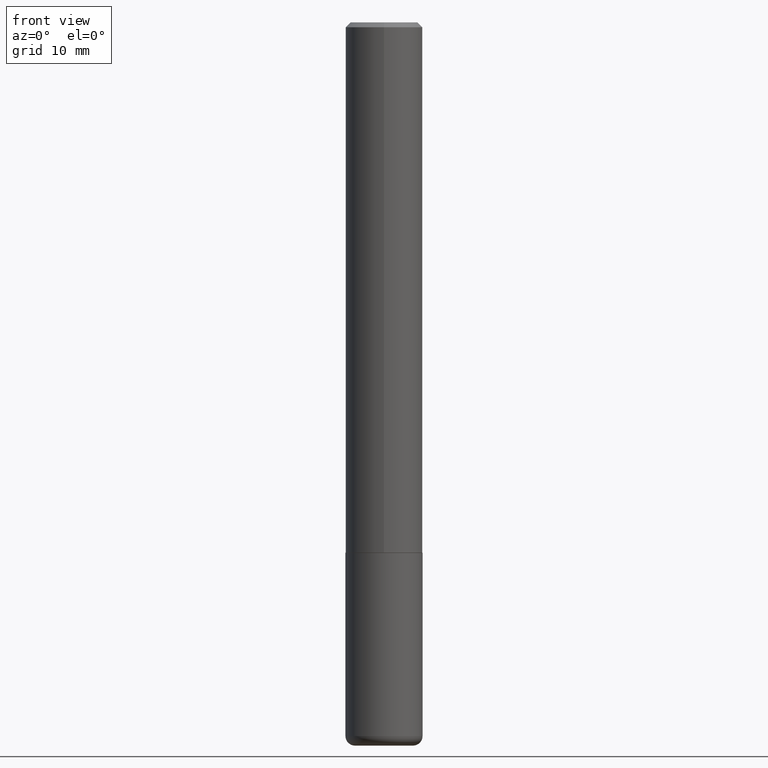
[diagram: clean part render]
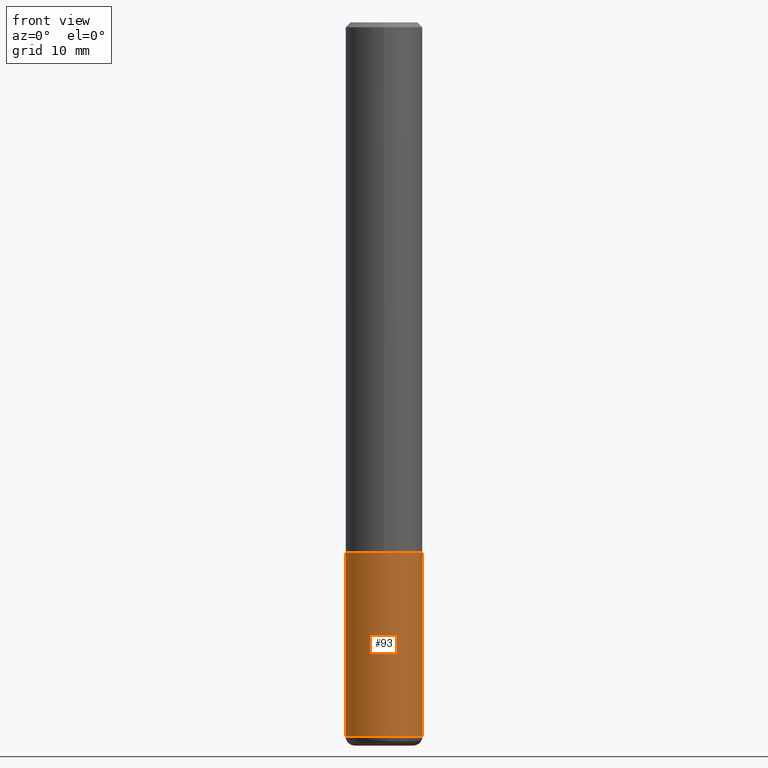
[diagram: same view with one face highlighted and labeled with its STEP entity id]
A machine part, front view. The second image highlights one B-rep face of the part: STEP entity #93.
In plain terms, the highlighted cylindrical surface (partial cylindrical patch) has radius 4.0005 mm, axis along (-0, 0, 1).
Its self-contained STEP definition (entity closure, byte-faithful):
#10 = DIRECTION ( 'NONE',  ( 1.000000000000000000, -6.982962677686268288E-15, 0.000000000000000000 ) ) ;
#14 = VERTEX_POINT ( 'NONE', #268 ) ;
#16 = DIRECTION ( 'NONE',  ( 1.000000000000000000, -6.982962677686265922E-15, 4.876176775795935232E-29 ) ) ;
#29 = CARTESIAN_POINT ( 'NONE',  ( -0.1575000000000000011, 1.119104808822157801E-15, -7.747322767151475583E-30 ) ) ;
#35 = ORIENTED_EDGE ( 'NONE', *, *, #90, .F. ) ;
#56 = CIRCLE ( 'NONE', #176, 0.1575000000000000011 ) ;
#63 = ORIENTED_EDGE ( 'NONE', *, *, #89, .T. ) ;
#80 = LINE ( 'NONE', #267, #129 ) ;
#84 = VERTEX_POINT ( 'NONE', #145 ) ;
#89 = EDGE_CURVE ( 'NONE', #153, #326, #217, .T. ) ;
#90 = EDGE_CURVE ( 'NONE', #14, #84, #56, .T. ) ;
#93 = ADVANCED_FACE ( 'NONE', ( #109 ), #142, .T. ) ;
#96 = EDGE_CURVE ( 'NONE', #153, #14, #391, .T. ) ;
#104 = CARTESIAN_POINT ( 'NONE',  ( -0.1575000000000000289, -9.052976923763463288E-15, -2.913399999999999768 ) ) ;
#106 = ORIENTED_EDGE ( 'NONE', *, *, #96, .F. ) ;
#109 = FACE_OUTER_BOUND ( 'NONE', #170, .T. ) ;
#117 = DIRECTION ( 'NONE',  ( 1.000000000000000000, -6.982962677686261977E-15, 0.000000000000000000 ) ) ;
#129 = VECTOR ( 'NONE', #238, 39.37007874015748143 ) ;
#138 = CARTESIAN_POINT ( 'NONE',  ( 0.000000000000000000, 0.000000000000000000, 0.000000000000000000 ) ) ;
#142 = CYLINDRICAL_SURFACE ( 'NONE', #270, 0.1575000000000000011 ) ;
#145 = CARTESIAN_POINT ( 'NONE',  ( 0.1575000000000000011, -8.660270312866534114E-15, -2.165399999999999991 ) ) ;
#149 = DIRECTION ( 'NONE',  ( -2.445468806185136597E-29, 3.491481338843145583E-15, 1.000000000000000000 ) ) ;
#153 = VERTEX_POINT ( 'NONE', #104 ) ;
#170 = EDGE_LOOP ( 'NONE', ( #106, #63, #406, #35 ) ) ;
#176 = AXIS2_PLACEMENT_3D ( 'NONE', #318, #177, #10 ) ;
#177 = DIRECTION ( 'NONE',  ( -2.445468806185136597E-29, 3.491481338843145583E-15, 1.000000000000000000 ) ) ;
#180 = CARTESIAN_POINT ( 'NONE',  ( 0.1575000000000000289, -1.127189835432120758E-14, -2.913399999999999768 ) ) ;
#217 = CIRCLE ( 'NONE', #347, 0.1575000000000000011 ) ;
#229 = DIRECTION ( 'NONE',  ( -2.445468806185136877E-29, 3.491481338843145188E-15, 1.000000000000000000 ) ) ;
#236 = DIRECTION ( 'NONE',  ( -2.445468806185136597E-29, 3.491481338843145583E-15, 1.000000000000000000 ) ) ;
#238 = DIRECTION ( 'NONE',  ( -2.445468806185136877E-29, 3.491481338843145188E-15, 1.000000000000000000 ) ) ;
#254 = CARTESIAN_POINT ( 'NONE',  ( 7.124628819939776708E-29, -1.017208173258561931E-14, -2.913399999999999768 ) ) ;
#267 = CARTESIAN_POINT ( 'NONE',  ( 0.1575000000000000011, -1.099816621735586889E-15, 7.679978421878598033E-30 ) ) ;
#268 = CARTESIAN_POINT ( 'NONE',  ( -0.1575000000000000011, -7.747162903036124976E-15, -2.165399999999999991 ) ) ;
#270 = AXIS2_PLACEMENT_3D ( 'NONE', #138, #236, #16 ) ;
#318 = CARTESIAN_POINT ( 'NONE',  ( 5.295418152913294345E-29, -7.560453691130947423E-15, -2.165399999999999991 ) ) ;
#326 = VERTEX_POINT ( 'NONE', #180 ) ;
#341 = VECTOR ( 'NONE', #229, 39.37007874015748143 ) ;
#347 = AXIS2_PLACEMENT_3D ( 'NONE', #254, #149, #117 ) ;
#352 = EDGE_CURVE ( 'NONE', #326, #84, #80, .T. ) ;
#391 = LINE ( 'NONE', #29, #341 ) ;
#406 = ORIENTED_EDGE ( 'NONE', *, *, #352, .T. ) ;